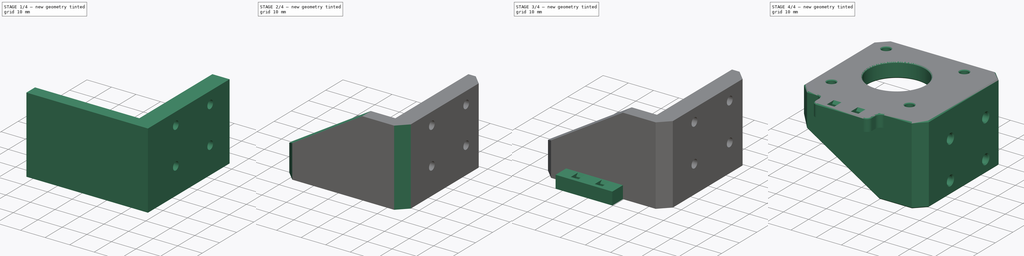
[diagram: build sequence overview — one tinted view per stage of 4, left to right]
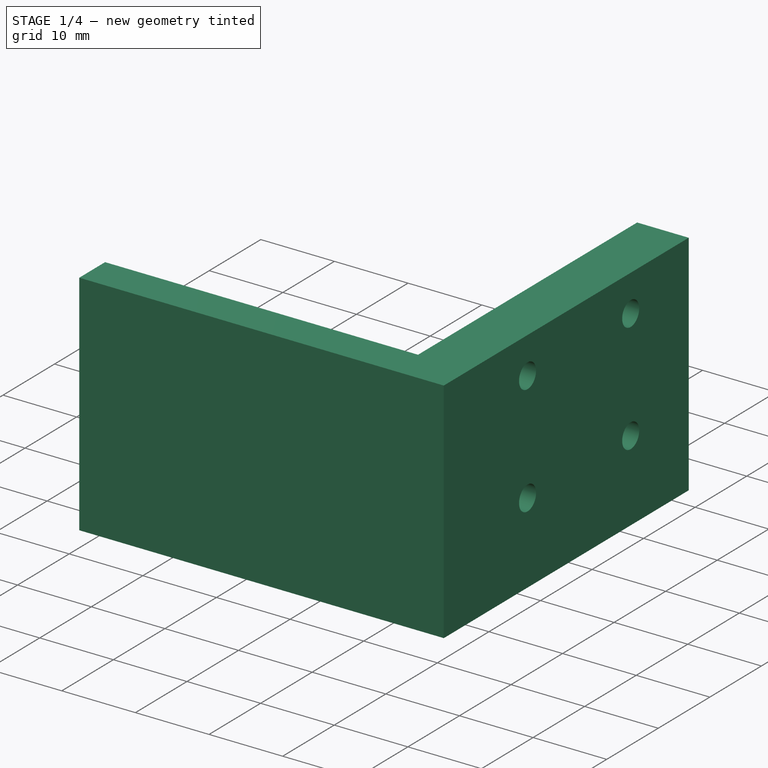
[diagram: stage 1 of 4 — iso view after this stage's code; geometry added in this stage tinted green]
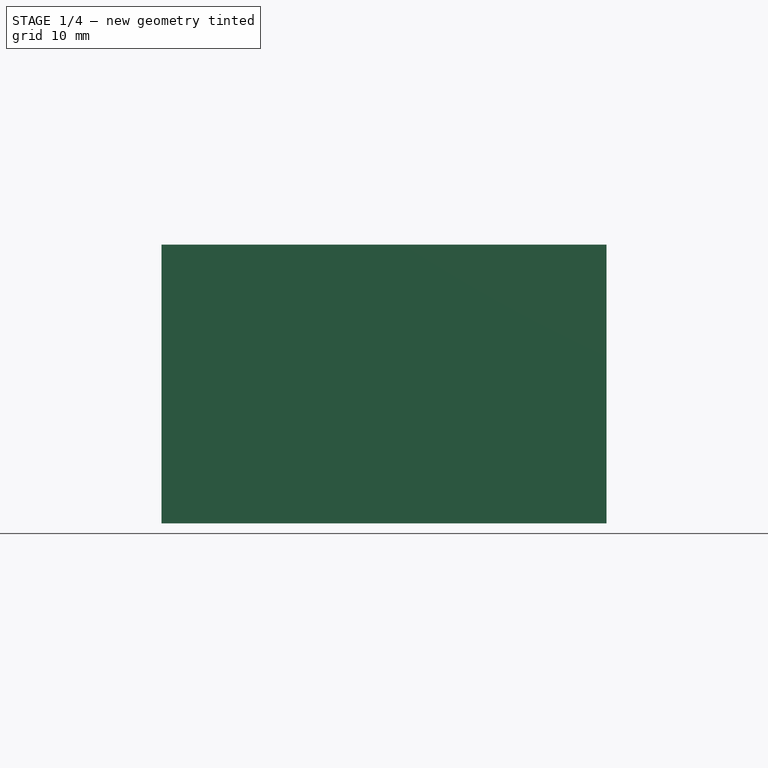
[diagram: stage 1 of 4 — front view after this stage's code; geometry added in this stage tinted green]
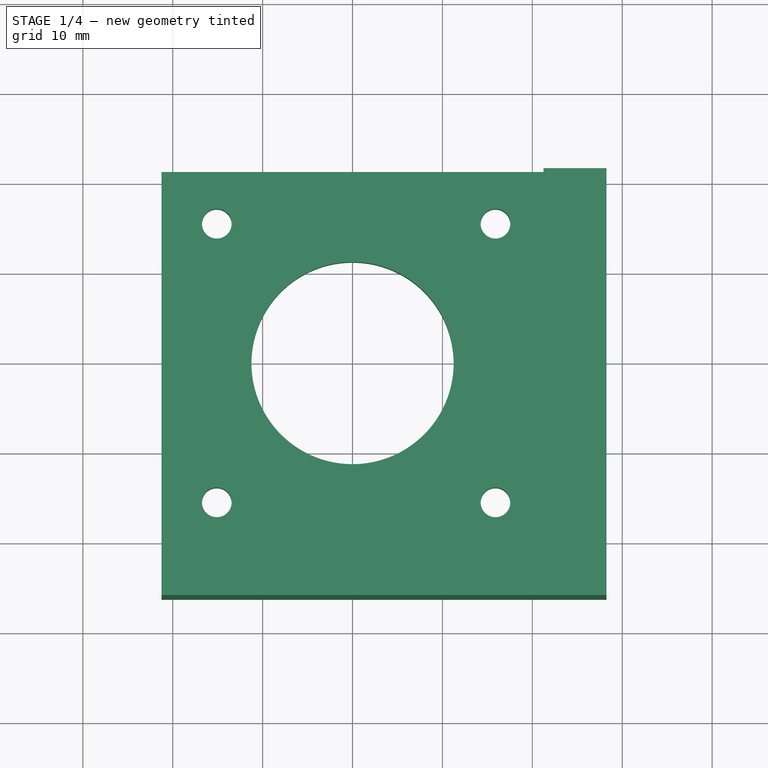
[diagram: stage 1 of 4 — top view after this stage's code; geometry added in this stage tinted green]
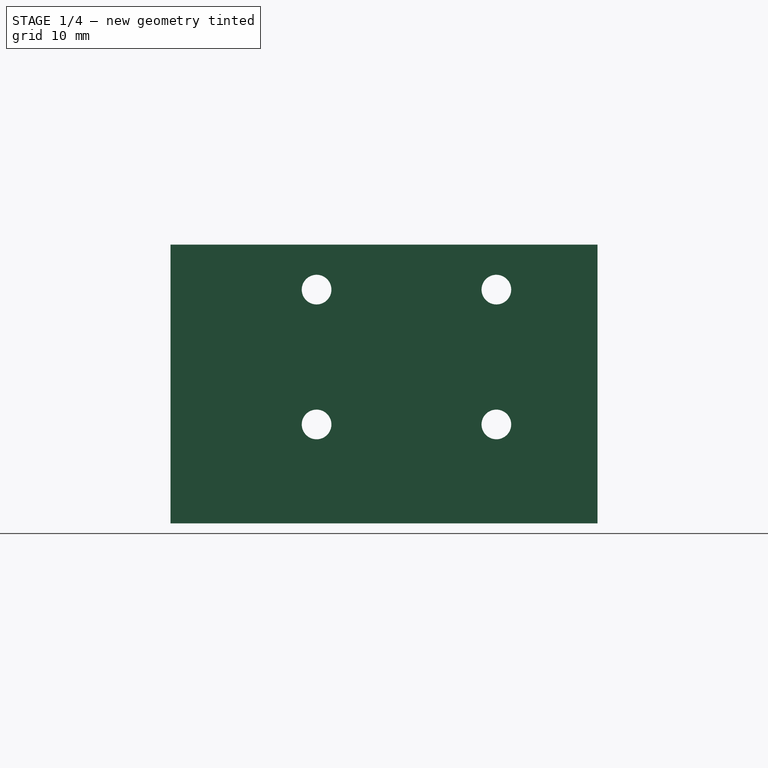
[diagram: stage 1 of 4 — right view after this stage's code; geometry added in this stage tinted green]
FCSTD DOCUMENT  (FreeCAD 0.19R24291 (Git))
Label: bowden-motor-mount
License: All rights reserved
LicenseURL: http://en.wikipedia.org/wiki/All_rights_reserved
objects: Sketcher::SketchObject×5, PartDesign::Chamfer×4, PartDesign::Pocket×3, PartDesign::Pad×2, PartDesign::Fillet×1, PartDesign::Body×1, Part::Mirroring×1
note: 27 computed .brp shape members not serialized (recipe doc carries the construction recipe); baked Part::Feature solids carry a one-line shape summary decoded from their .brp

FEATURE [Sketcher::SketchObject] Sketch
  FullyConstrained = true
  MapMode = 5
  Support = -> [XY_Plane]
  sketch-geometry (9):
    g0: LineSegment StartX=-21.25 StartY=21.25 StartZ=0 EndX=28.25 EndY=21.25 EndZ=0
    g1: LineSegment StartX=28.25 StartY=21.25 StartZ=0 EndX=28.25 EndY=-26.25 EndZ=0
    g2: LineSegment StartX=28.25 StartY=-26.25 StartZ=0 EndX=-21.25 EndY=-26.25 EndZ=0
    g3: LineSegment StartX=-21.25 StartY=-26.25 StartZ=0 EndX=-21.25 EndY=21.25 EndZ=0
    g4: Circle CenterX=0 CenterY=0 CenterZ=0 NormalX=0 NormalY=0 NormalZ=1 AngleXU=0 Radius=11.25
    g5: Circle CenterX=-15.1 CenterY=15.5 CenterZ=0 NormalX=0 NormalY=0 NormalZ=1 AngleXU=0 Radius=1.65
    g6: Circle CenterX=-15.1 CenterY=-15.5 CenterZ=0 NormalX=0 NormalY=0 NormalZ=1 AngleXU=0 Radius=1.65
    g7: Circle CenterX=15.9 CenterY=-15.5 CenterZ=0 NormalX=0 NormalY=0 NormalZ=1 AngleXU=0 Radius=1.65
    g8: Circle CenterX=15.9 CenterY=15.5 CenterZ=0 NormalX=0 NormalY=0 NormalZ=1 AngleXU=0 Radius=1.65
  constraints (26):
    c: Coincident(g0,g1)
    c: Coincident(g1,g2)
    c: Coincident(g2,g3)
    c: Coincident(g3,g0)
    c: Horizontal(g0)
    c: Horizontal(g2)
    c: Vertical(g1)
    c: Vertical(g3)
    c: DistanceX(g-1,g0) = 28.25
    c: DistanceY(g1,g-1) = 26.25
    c: DistanceY(g-1,g0) = 21.25
    c: DistanceX(g0,g-1) = 21.25
    c: Coincident(g4,g-1)
    c: Radius(g4) = 11.25
    c: Horizontal(g5,g8)
    c: Horizontal(g6,g7)
    c: Vertical(g6,g5)
    c: Vertical(g7,g8)
    c: DistanceX(g5,g4) = 15.1
    c: DistanceX(g5,g8) = 31
    c: DistanceY(g4,g5) = 15.5
    c: DistanceY(g6,g5) = 31
    c: Equal(g6,g7)
    c: Equal(g7,g8)
    c: Equal(g8,g5)
    c: Radius(g7) = 1.65
FEATURE [PartDesign::Pad] Pad
  Direction = (1,1,1)
  Length = 31
  Length2 = 100
  Profile = -> Sketch
  Type = 0
FEATURE [Sketcher::SketchObject] Sketch001
  FullyConstrained = true
  MapMode = 5
  Placement = pos=(0,0,31) rot=(0,0,1;0rad)
  Support = -> [Pad]
  sketch-geometry (4):
    g0: LineSegment StartX=-21.25 StartY=21.25 StartZ=0 EndX=21.25 EndY=21.25 EndZ=0
    g1: LineSegment StartX=21.25 StartY=21.25 StartZ=0 EndX=21.25 EndY=-21.25 EndZ=0
    g2: LineSegment StartX=21.25 StartY=-21.25 StartZ=0 EndX=-21.25 EndY=-21.25 EndZ=0
    g3: LineSegment StartX=-21.25 StartY=-21.25 StartZ=0 EndX=-21.25 EndY=21.25 EndZ=0
  constraints (12):
    c: Coincident(g0,g1)
    c: Coincident(g1,g2)
    c: Coincident(g2,g3)
    c: Coincident(g3,g0)
    c: Horizontal(g0)
    c: Horizontal(g2)
    c: Vertical(g1)
    c: Vertical(g3)
    c: DistanceX(g0,g0) = 42.5
    c: DistanceX(g0,g-1) = 21.25
    c: DistanceY(g1,g1) = 42.5
    c: DistanceY(g-1,g0) = 21.25
FEATURE [PartDesign::Pocket] Pocket
  BaseFeature = -> Pad
  Length = 25
  Length2 = 100
  Profile = -> Sketch001
  Type = 0
FEATURE [Sketcher::SketchObject] Sketch002
  FullyConstrained = true
  MapMode = 5
  Placement = pos=(21.25,0,0) rot=(0.57735,-0.57735,-0.57735;2.0944rad)
  Support = -> [Pocket]
  sketch-geometry (4):
    g0: Circle CenterX=-10 CenterY=26 CenterZ=0 NormalX=0 NormalY=0 NormalZ=1 AngleXU=0 Radius=1.65
    g1: Circle CenterX=-10 CenterY=11 CenterZ=0 NormalX=0 NormalY=0 NormalZ=1 AngleXU=0 Radius=1.65
    g2: Circle CenterX=10 CenterY=26 CenterZ=0 NormalX=0 NormalY=0 NormalZ=1 AngleXU=0 Radius=1.65
    g3: Circle CenterX=10 CenterY=11 CenterZ=0 NormalX=0 NormalY=0 NormalZ=1 AngleXU=0 Radius=1.65
  constraints (12):
    c: Horizontal(g3,g1)
    c: Horizontal(g0,g2)
    c: Vertical(g0,g1)
    c: Vertical(g3,g2)
    c: DistanceX(g0,g2) = 20
    c: DistanceY(g1,g0) = 15
    c: Equal(g2,g3)
    c: Equal(g3,g1)
    c: Equal(g1,g0)
    c: Radius(g2) = 1.65
    c: DistanceY(g-1,g0) = 26
    c: DistanceX(g1,g-1) = 10
FEATURE [PartDesign::Pocket] Pocket001
  BaseFeature = -> Pocket
  Length = 5
  Length2 = 100
  Profile = -> Sketch002
  Type = 1
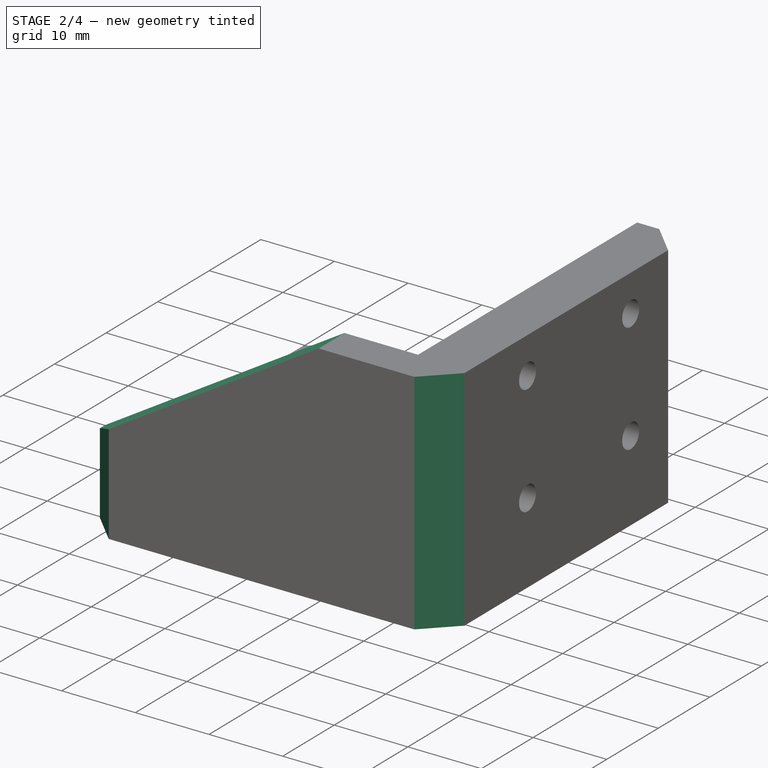
[diagram: stage 2 of 4 — iso view after this stage's code; geometry added in this stage tinted green]
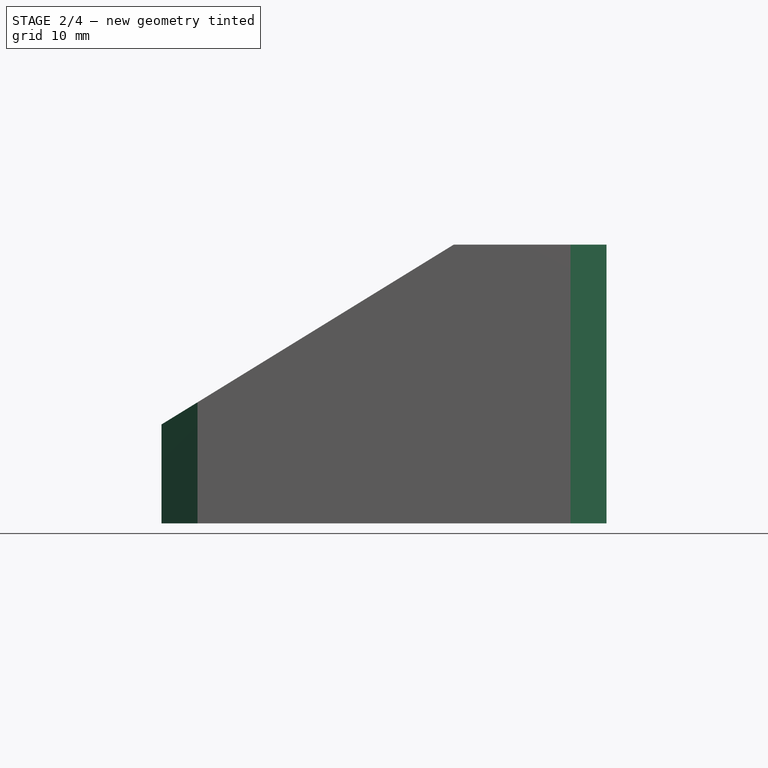
[diagram: stage 2 of 4 — front view after this stage's code; geometry added in this stage tinted green]
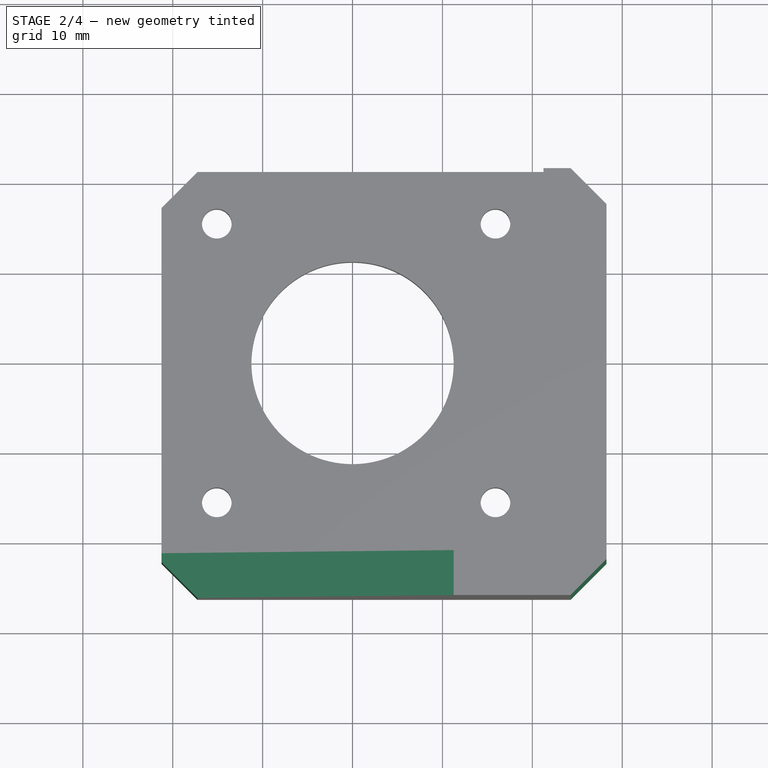
[diagram: stage 2 of 4 — top view after this stage's code; geometry added in this stage tinted green]
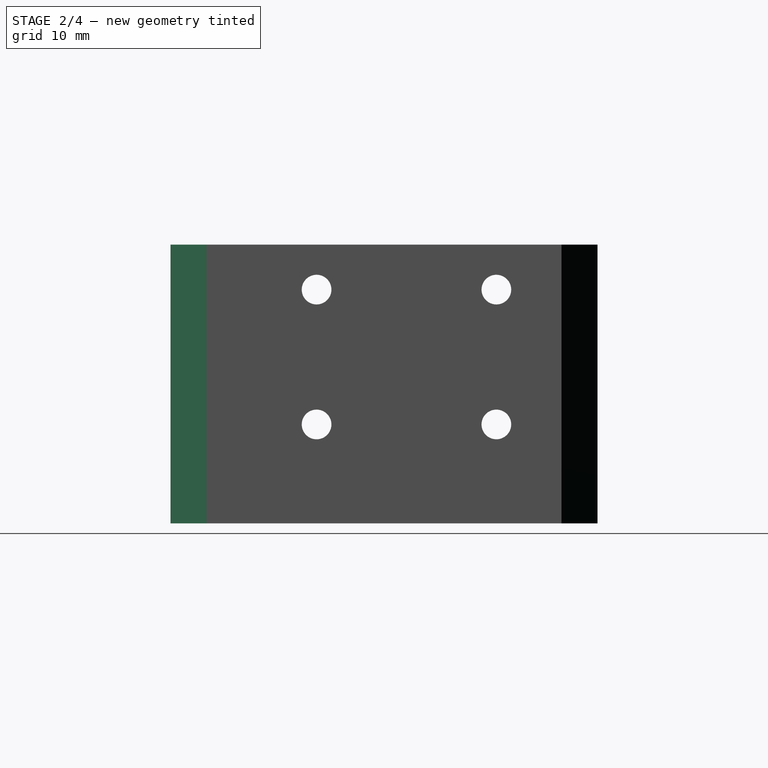
[diagram: stage 2 of 4 — right view after this stage's code; geometry added in this stage tinted green]
FEATURE [Sketcher::SketchObject] Sketch003
  ExternalGeometry = -> [Pocket001]
  FullyConstrained = true
  MapMode = 5
  Placement = pos=(21.25,0,0) rot=(0.57735,-0.57735,-0.57735;2.0944rad)
  Support = -> [Pocket001]
  sketch-geometry (4):
    g0: Circle CenterX=-10 CenterY=26 CenterZ=0 NormalX=0 NormalY=0 NormalZ=1 AngleXU=0 Radius=3.25
    g1: Circle CenterX=-10 CenterY=11 CenterZ=0 NormalX=0 NormalY=0 NormalZ=1 AngleXU=0 Radius=3.25
    g2: Circle CenterX=10 CenterY=11 CenterZ=0 NormalX=0 NormalY=0 NormalZ=1 AngleXU=0 Radius=3.25
    g3: Circle CenterX=10 CenterY=26 CenterZ=0 NormalX=0 NormalY=0 NormalZ=1 AngleXU=0 Radius=3.25
  constraints (8):
    c: Coincident(g0,g-3)
    c: Coincident(g1,g-4)
    c: Coincident(g2,g-6)
    c: Coincident(g3,g-5)
    c: Equal(g0,g1)
    c: Equal(g1,g3)
    c: Radius(g0) = 3.25
    c: Equal(g3,g2)
FEATURE [PartDesign::Pocket] Pocket002
  BaseFeature = -> Pocket001
  Length = 3
  Length2 = 100
  Profile = -> Sketch003
  Type = 0
FEATURE [PartDesign::Chamfer] Chamfer
  Angle = 45
  Base = -> Pocket002 [Edge23]
  BaseFeature = -> Pocket002
  ChamferType = 1
  FlipDirection = false
  Size = 32.5
  Size2 = 20
  SupportTransform = false
FEATURE [PartDesign::Chamfer] Chamfer001
  Angle = 45
  Base = -> Chamfer [Edge25,Edge23,Edge19,Edge21]
  BaseFeature = -> Chamfer
  ChamferType = 0
  FlipDirection = false
  Size = 4
  Size2 = 1
  SupportTransform = false
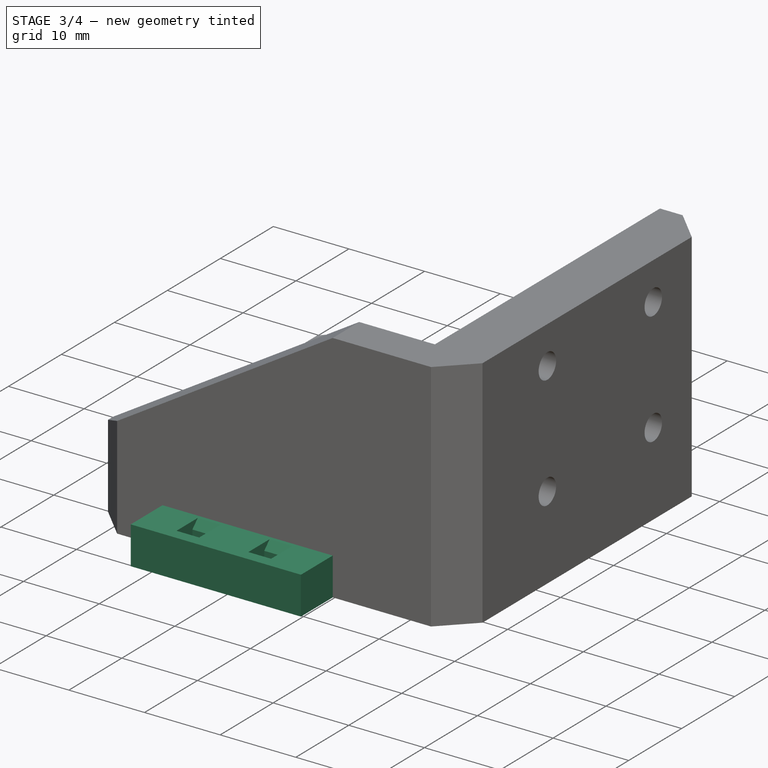
[diagram: stage 3 of 4 — iso view after this stage's code; geometry added in this stage tinted green]
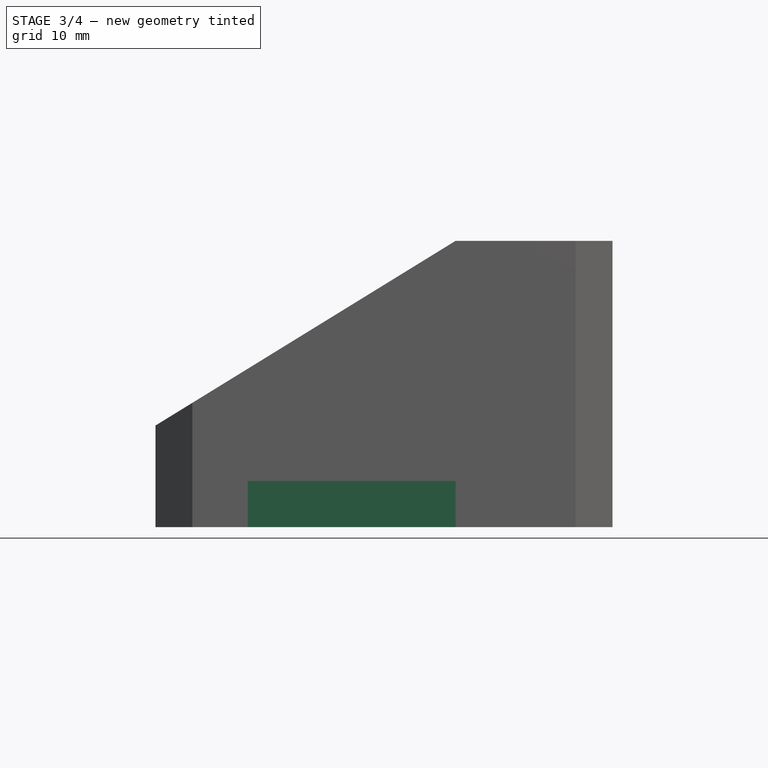
[diagram: stage 3 of 4 — front view after this stage's code; geometry added in this stage tinted green]
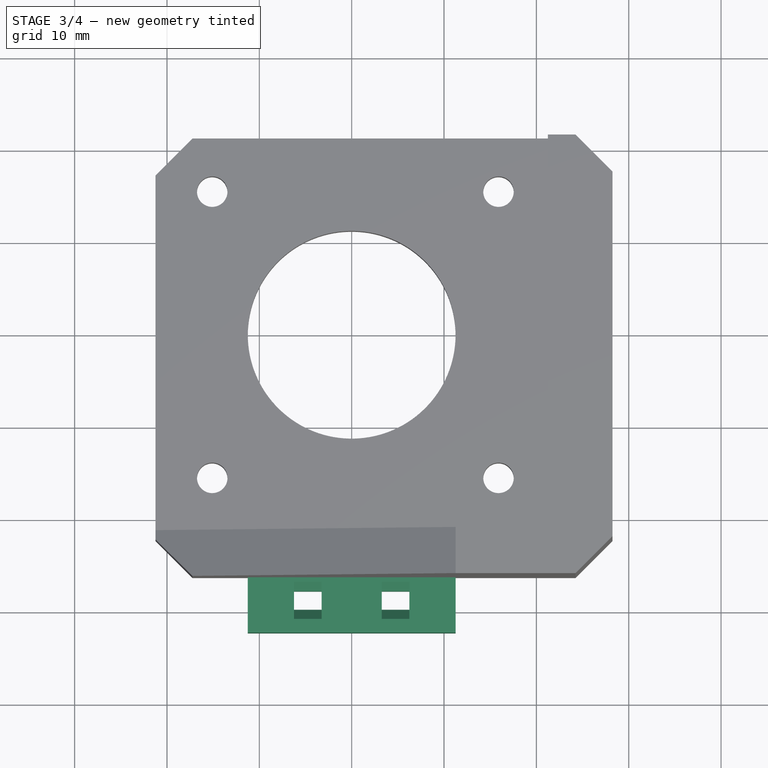
[diagram: stage 3 of 4 — top view after this stage's code; geometry added in this stage tinted green]
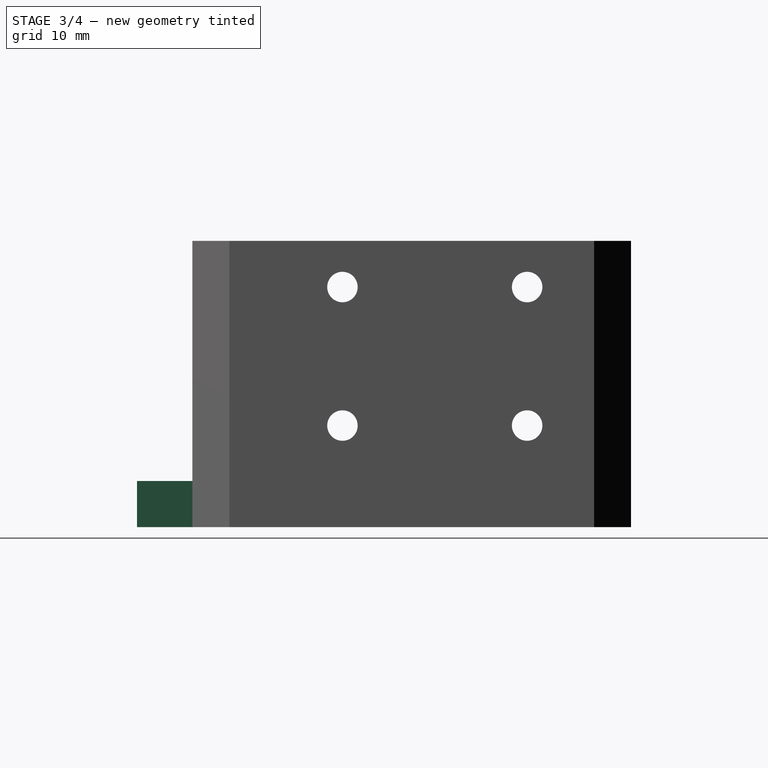
[diagram: stage 3 of 4 — right view after this stage's code; geometry added in this stage tinted green]
FEATURE [Sketcher::SketchObject] Sketch004
  ExternalGeometry = -> [Chamfer001]
  FullyConstrained = true
  MapMode = 5
  Placement = pos=(0,0,0) rot=(1,0,0;3.14159rad)
  Support = -> [Chamfer001]
  sketch-geometry (12):
    g0: LineSegment StartX=-11.25 StartY=26.25 StartZ=0 EndX=11.25 EndY=26.25 EndZ=0
    g1: LineSegment StartX=11.25 StartY=26.25 StartZ=0 EndX=11.25 EndY=32.25 EndZ=0
    g2: LineSegment StartX=11.25 StartY=32.25 StartZ=0 EndX=-11.25 EndY=32.25 EndZ=0
    g3: LineSegment StartX=-11.25 StartY=32.25 StartZ=0 EndX=-11.25 EndY=26.25 EndZ=0
    g4: LineSegment StartX=-6.25 StartY=29.75 StartZ=0 EndX=-3.25 EndY=29.75 EndZ=0
    g5: LineSegment StartX=-3.25 StartY=29.75 StartZ=0 EndX=-3.25 EndY=27.75 EndZ=0
    g6: LineSegment StartX=-3.25 StartY=27.75 StartZ=0 EndX=-6.25 EndY=27.75 EndZ=0
    g7: LineSegment StartX=-6.25 StartY=27.75 StartZ=0 EndX=-6.25 EndY=29.75 EndZ=0
    g8: LineSegment StartX=3.25 StartY=29.75 StartZ=0 EndX=6.25 EndY=29.75 EndZ=0
    g9: LineSegment StartX=6.25 StartY=29.75 StartZ=0 EndX=6.25 EndY=27.75 EndZ=0
    g10: LineSegment StartX=6.25 StartY=27.75 StartZ=0 EndX=3.25 EndY=27.75 EndZ=0
    g11: LineSegment StartX=3.25 StartY=27.75 StartZ=0 EndX=3.25 EndY=29.75 EndZ=0
  constraints (36):
    c: Coincident(g0,g1)
    c: Coincident(g1,g2)
    c: Coincident(g2,g3)
    c: Coincident(g3,g0)
    c: Horizontal(g0)
    c: Horizontal(g2)
    c: Vertical(g1)
    c: Vertical(g3)
    c: PointOnObject(g0,g-3)
    c: DistanceX(g-4,g0) = 10
    c: DistanceX(g0,g-5) = 17
    c: Coincident(g4,g5)
    c: Coincident(g5,g6)
    c: Coincident(g6,g7)
    c: Coincident(g7,g4)
    c: Horizontal(g4)
    c: Horizontal(g6)
    c: Vertical(g5)
    c: Vertical(g7)
    c: Coincident(g8,g9)
    c: Coincident(g9,g10)
    c: Coincident(g10,g11)
    c: Coincident(g11,g8)
    c: Horizontal(g8)
    c: Horizontal(g10)
    c: Vertical(g9)
    c: Vertical(g11)
    c: Horizontal(g4,g8)
    c: Horizontal(g5,g9)
    c: DistanceX(g4,g4) = 3
    c: DistanceX(g8,g8) = 3
    c: DistanceY(g7,g7) = 2
    c: DistanceX(g2,g4) = 5
    c: DistanceX(g8,g1) = 5
    c: DistanceY(g0,g6) = 1.5
    c: DistanceY(g4,g2) = 2.5
FEATURE [PartDesign::Pad] Pad001
  BaseFeature = -> Chamfer001
  Direction = (1,1,1)
  Length = 5
  Length2 = 100
  Profile = -> Sketch004
  Reversed = true
  Type = 0
FEATURE [PartDesign::Chamfer] Chamfer002
  Angle = 45
  Base = -> Pad001 [Edge94,Edge92,Edge98,Edge96,Edge58,Edge56,Edge60,Edge62]
  BaseFeature = -> Pad001
  ChamferType = 0
  FlipDirection = false
  Size = 1
  Size2 = 1
  SupportTransform = false
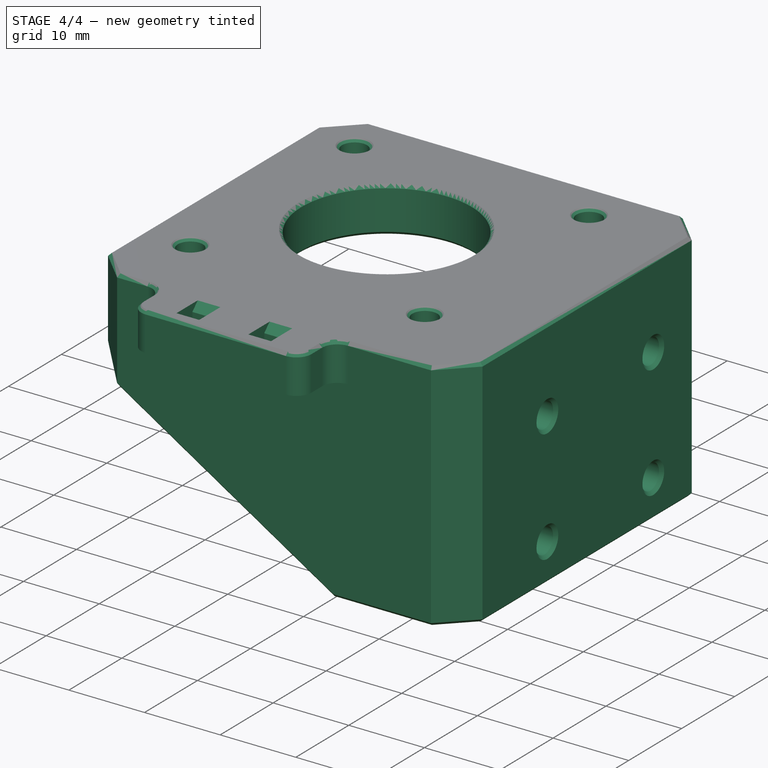
[diagram: stage 4 of 4 — iso view after this stage's code; geometry added in this stage tinted green]
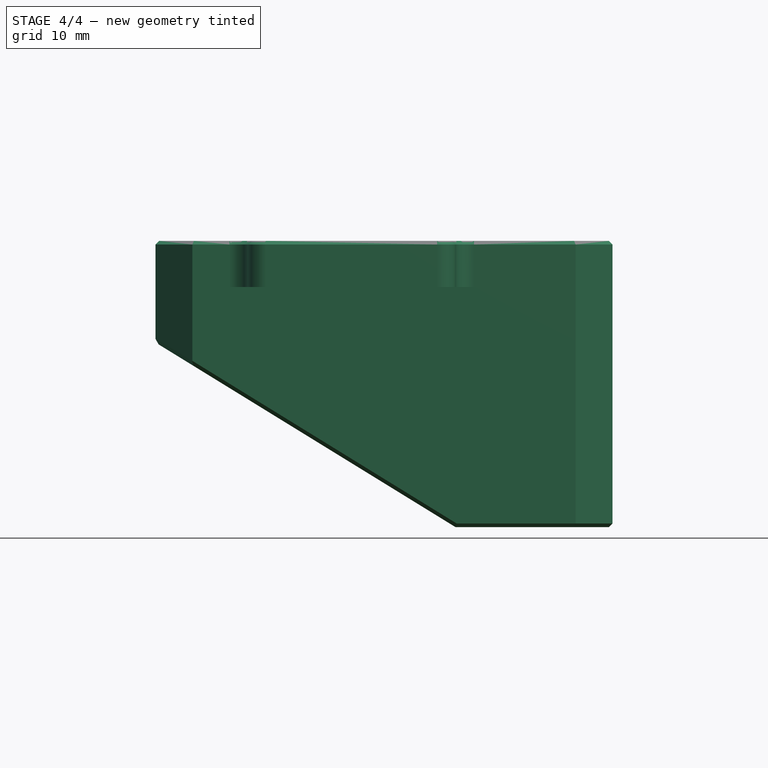
[diagram: stage 4 of 4 — front view after this stage's code; geometry added in this stage tinted green]
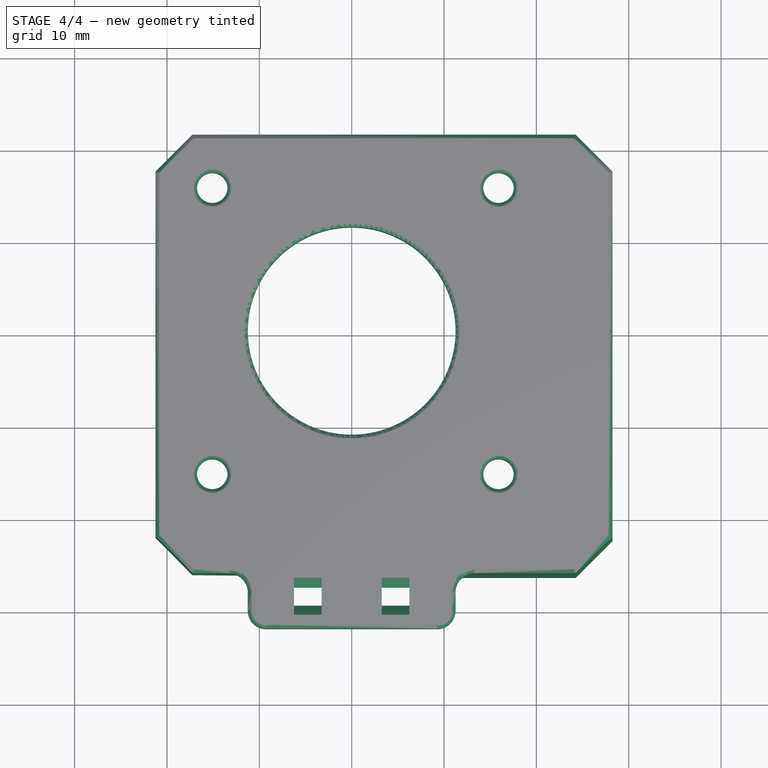
[diagram: stage 4 of 4 — top view after this stage's code; geometry added in this stage tinted green]
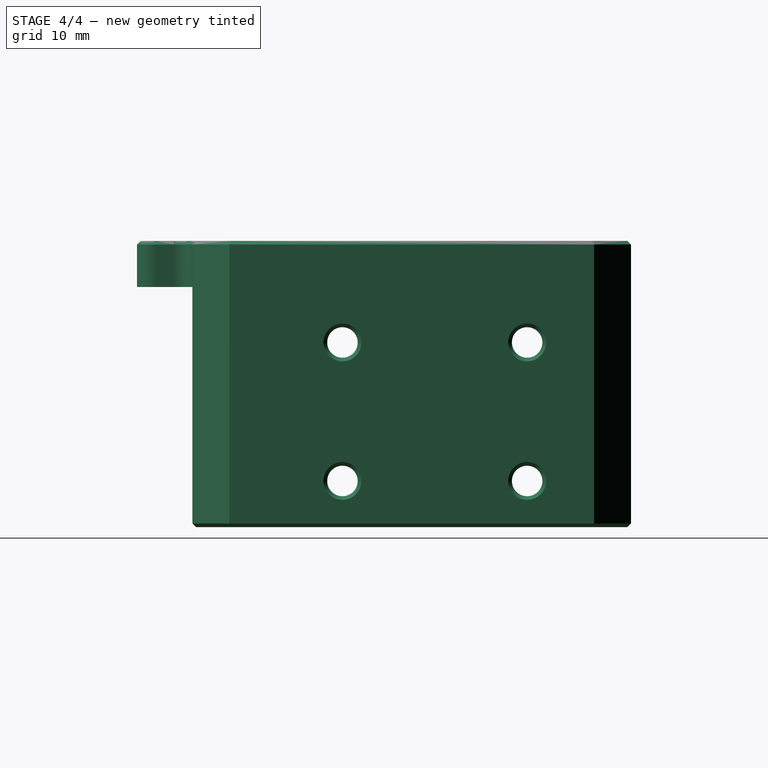
[diagram: stage 4 of 4 — right view after this stage's code; geometry added in this stage tinted green]
FEATURE [PartDesign::Fillet] Fillet
  Base = -> Chamfer002 [Edge45,Edge49,Edge51,Edge46]
  BaseFeature = -> Chamfer002
  Radius = 2
  Refine = true
  SupportTransform = false
FEATURE [PartDesign::Chamfer] Chamfer003
  Angle = 45
  Base = -> Fillet [Edge92,Edge98,Edge100,Edge104,Edge108,Edge70,Edge24,Edge20,Edge17,Edge22,Edge31,Edge33,Edge35,Edge37,Edge30,Edge82,Edge136,Edge134,Edge130,Edge132,Edge138,Edge94,Edge96,Edge97,Edge95,Edge128,Edge127,Edge129,Edge125,Edge126,Edge78,Edge77,Edge76,Edge74,Edge72,Edge26,Edge27,Edge75,Edge81,Edge80,+5 more]
  BaseFeature = -> Fillet
  ChamferType = 0
  FlipDirection = false
  Size = 0.4
  Size2 = 1
  SupportTransform = false
FEATURE [PartDesign::Body] Body
  Group = -> [Sketch,Pad,Sketch001,Pocket,Sketch002,Pocket001,Sketch003,Pocket002,Chamfer,Chamfer001,Sketch004,Pad001,Chamfer002,Fillet,Chamfer003]
  Origin = -> Origin
  Tip = -> Chamfer003
FEATURE [Part::Mirroring] Part__Mirroring  label="Chamfer003 (Mirror #1)"
  Base = (0,0,0)
  Normal = (0,0,1)
  Source = -> Chamfer003
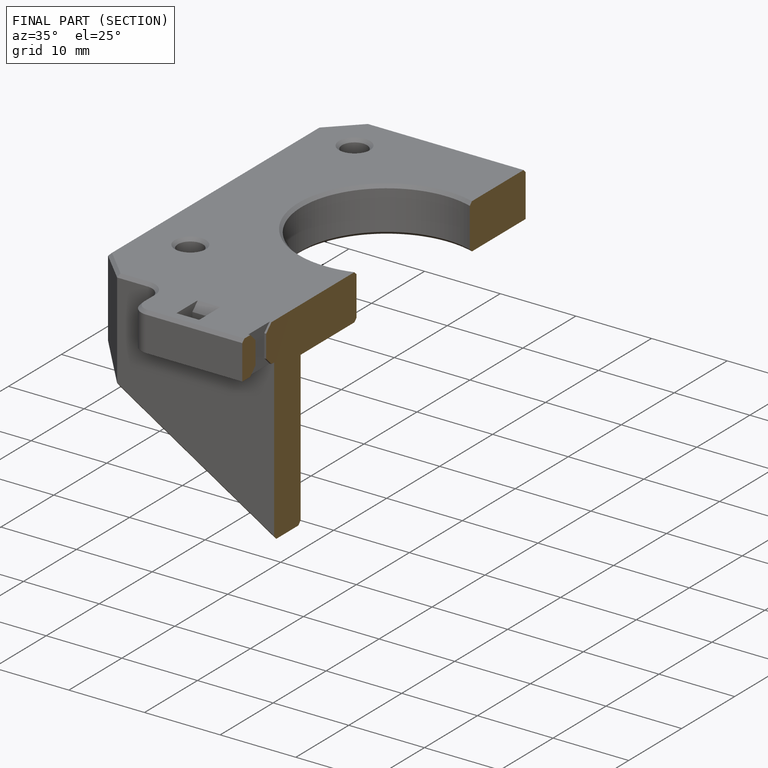
[diagram: finished part — half-section view (interior)]
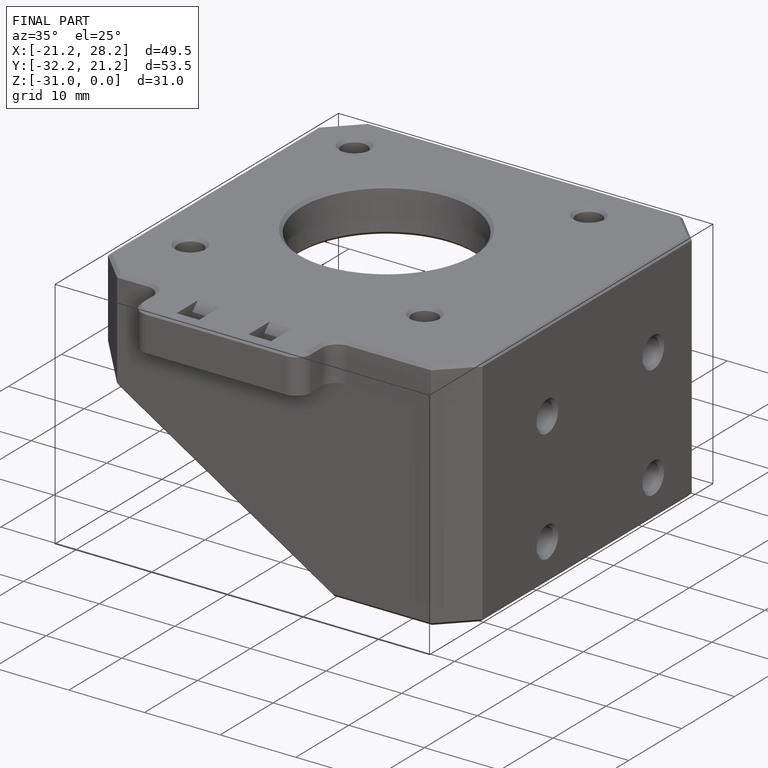
[diagram: finished part — iso view with bounding-box wireframe]
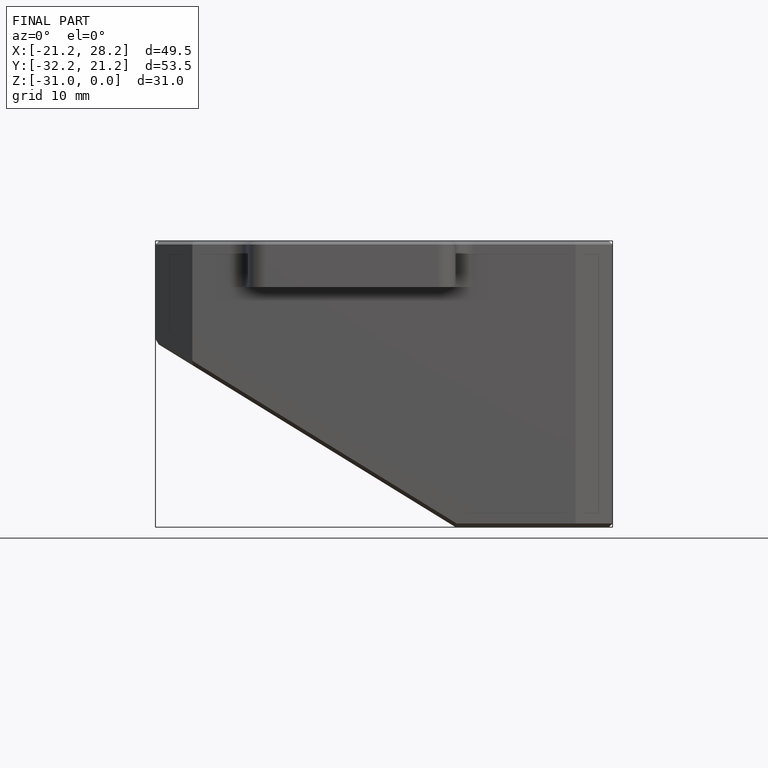
[diagram: finished part — front view with bounding-box wireframe]
